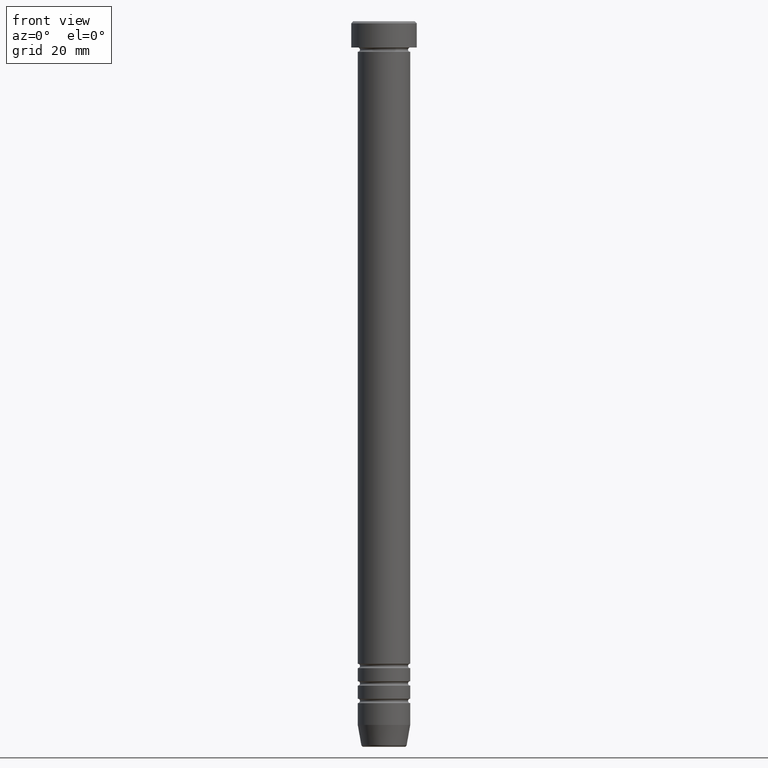
[diagram: clean part render]
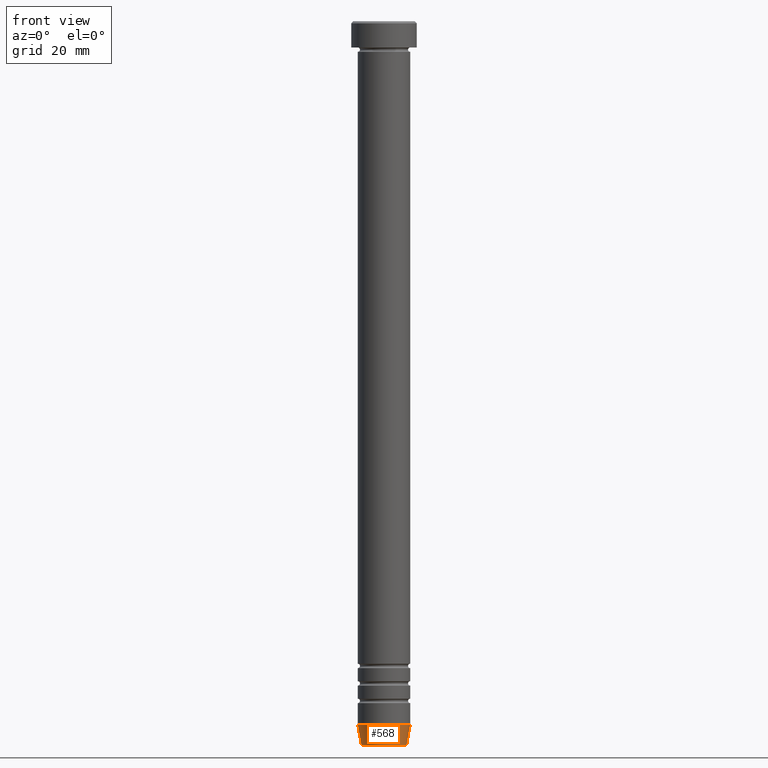
[diagram: same view with one face highlighted and labeled with its STEP entity id]
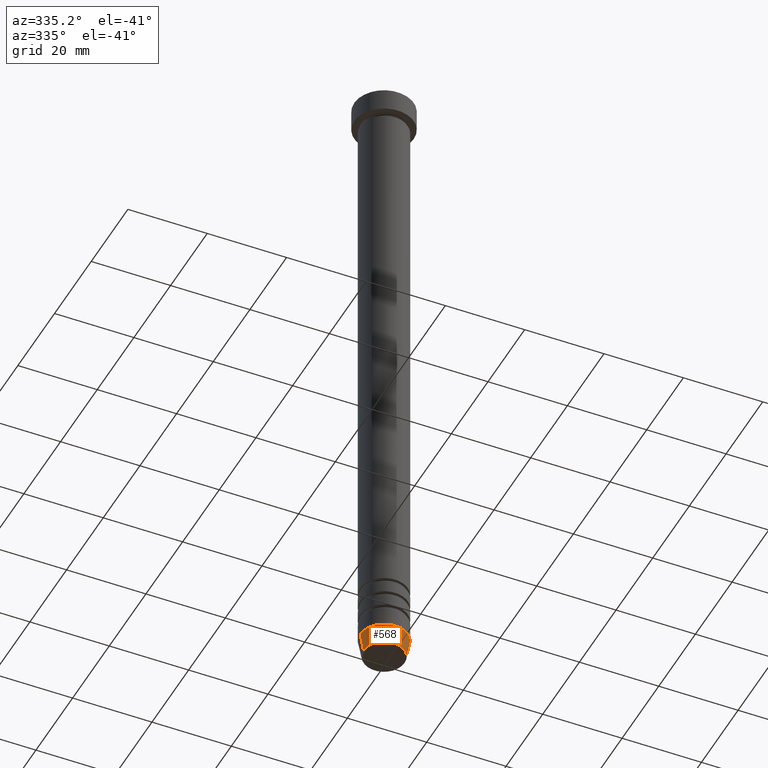
[diagram: same view with one face highlighted and labeled with its STEP entity id]
A machine part, front view. The second image highlights one B-rep face of the part: STEP entity #568.
A second angle (auxiliary view) of the same face is appended — the face is thin or edge-on in the first view.
In plain terms, the highlighted conical surface has half-angle 10 deg.
Its self-contained STEP definition (entity closure, byte-faithful):
#20 = ORIENTED_EDGE ( 'NONE', *, *, #508, .F. ) ;
#32 = VECTOR ( 'NONE', #1004, 999.9999999999998863 ) ;
#52 = CARTESIAN_POINT ( 'NONE',  ( 5.191219157375138060, 0.000000000000000000, -165.5868240888334526 ) ) ;
#81 = CARTESIAN_POINT ( 'NONE',  ( 0.000000000000000000, 0.000000000000000000, -166.0000000000000000 ) ) ;
#133 = CIRCLE ( 'NONE', #649, 5.191219157375138060 ) ;
#145 = EDGE_CURVE ( 'NONE', #736, #206, #455, .T. ) ;
#152 = AXIS2_PLACEMENT_3D ( 'NONE', #81, #437, #1070 ) ;
#178 = DIRECTION ( 'NONE',  ( -0.000000000000000000, -0.000000000000000000, 1.000000000000000000 ) ) ;
#201 = CARTESIAN_POINT ( 'NONE',  ( 5.118365096457675456, 0.000000000000000000, -166.0000000000000000 ) ) ;
#206 = VERTEX_POINT ( 'NONE', #255 ) ;
#215 = LINE ( 'NONE', #1077, #32 ) ;
#224 = DIRECTION ( 'NONE',  ( -0.000000000000000000, -0.000000000000000000, 1.000000000000000000 ) ) ;
#251 = VERTEX_POINT ( 'NONE', #282 ) ;
#255 = CARTESIAN_POINT ( 'NONE',  ( 6.000000000000002665, 0.000000000000000000, -161.0000000000000000 ) ) ;
#262 = FACE_OUTER_BOUND ( 'NONE', #625, .T. ) ;
#274 = DIRECTION ( 'NONE',  ( 1.000000000000000000, 0.000000000000000000, 0.000000000000000000 ) ) ;
#282 = CARTESIAN_POINT ( 'NONE',  ( -6.000000000000002665, 7.347880794884122694E-16, -161.0000000000000000 ) ) ;
#293 = DIRECTION ( 'NONE',  ( -1.000000000000000000, 0.000000000000000000, 0.000000000000000000 ) ) ;
#335 = EDGE_CURVE ( 'NONE', #1062, #736, #133, .T. ) ;
#341 = CARTESIAN_POINT ( 'NONE',  ( 0.000000000000000000, 0.000000000000000000, -161.0000000000000000 ) ) ;
#346 = ORIENTED_EDGE ( 'NONE', *, *, #335, .T. ) ;
#355 = AXIS2_PLACEMENT_3D ( 'NONE', #341, #178, #274 ) ;
#437 = DIRECTION ( 'NONE',  ( -0.000000000000000000, -0.000000000000000000, 1.000000000000000000 ) ) ;
#455 = LINE ( 'NONE', #201, #662 ) ;
#471 = DIRECTION ( 'NONE',  ( 0.1736481776669306087, 0.000000000000000000, 0.9848077530122081313 ) ) ;
#508 = EDGE_CURVE ( 'NONE', #251, #206, #814, .T. ) ;
#568 = ADVANCED_FACE ( 'NONE', ( #262 ), #572, .T. ) ;
#572 = CONICAL_SURFACE ( 'NONE', #152, 5.118365096457675456, 0.1745329251994331976 ) ;
#625 = EDGE_LOOP ( 'NONE', ( #690, #346, #673, #20 ) ) ;
#649 = AXIS2_PLACEMENT_3D ( 'NONE', #1109, #224, #293 ) ;
#662 = VECTOR ( 'NONE', #471, 999.9999999999998863 ) ;
#673 = ORIENTED_EDGE ( 'NONE', *, *, #145, .T. ) ;
#690 = ORIENTED_EDGE ( 'NONE', *, *, #1110, .F. ) ;
#701 = CARTESIAN_POINT ( 'NONE',  ( -5.191219157375138060, 6.852645359818002966E-16, -165.5868240888334526 ) ) ;
#736 = VERTEX_POINT ( 'NONE', #52 ) ;
#814 = CIRCLE ( 'NONE', #355, 6.000000000000002665 ) ;
#1004 = DIRECTION ( 'NONE',  ( -0.1736481776669306087, 2.126576849575774688E-17, 0.9848077530122081313 ) ) ;
#1062 = VERTEX_POINT ( 'NONE', #701 ) ;
#1070 = DIRECTION ( 'NONE',  ( 1.000000000000000000, 0.000000000000000000, 0.000000000000000000 ) ) ;
#1077 = CARTESIAN_POINT ( 'NONE',  ( -5.118365096457675456, 6.268189432244426128E-16, -166.0000000000000000 ) ) ;
#1109 = CARTESIAN_POINT ( 'NONE',  ( 0.000000000000000000, 0.000000000000000000, -165.5868240888334526 ) ) ;
#1110 = EDGE_CURVE ( 'NONE', #1062, #251, #215, .T. ) ;